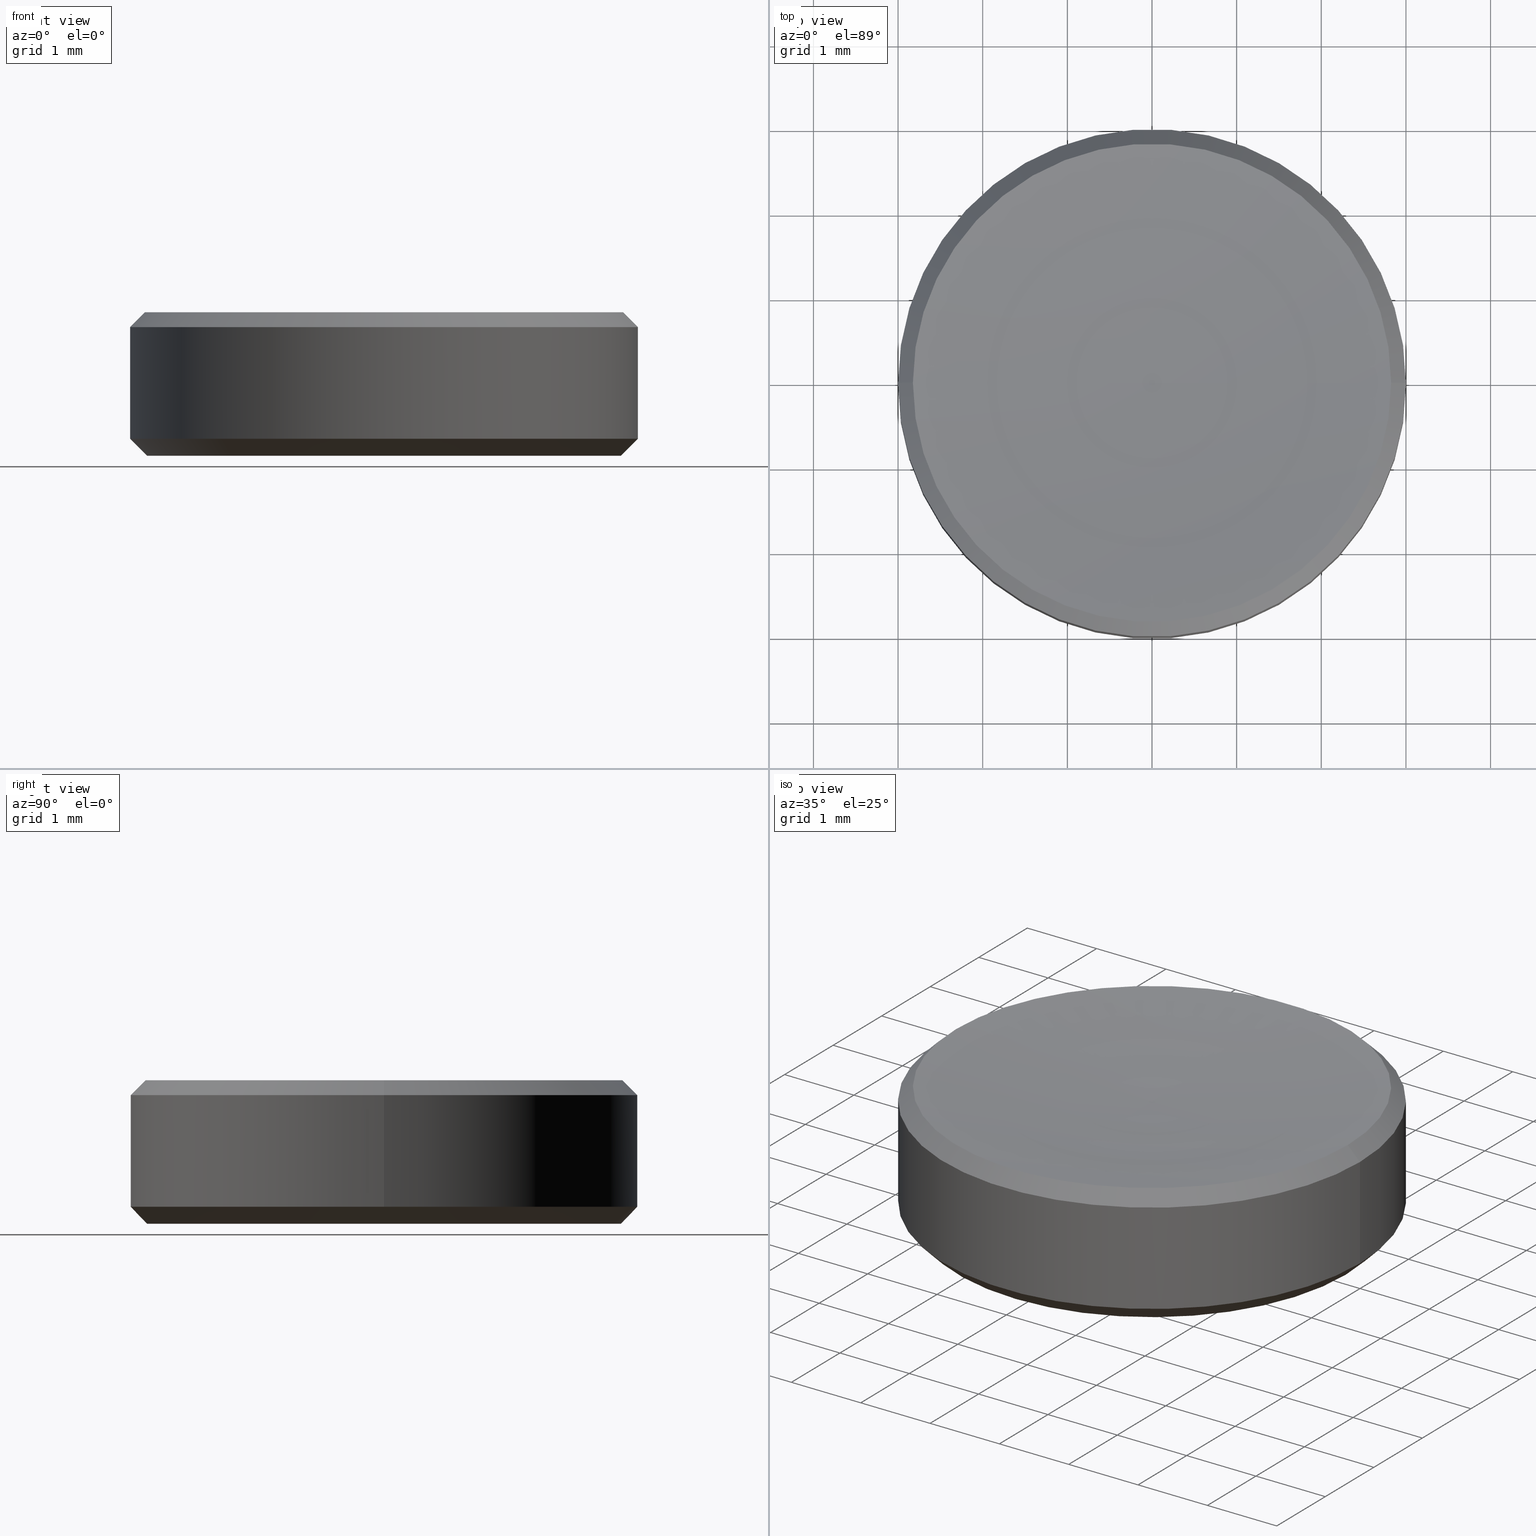
[diagram: canonical four-view strip — front | top / right | iso, engineering-drawing reading convention]
A machine part, canonical four-view strip (front | top / right | iso — engineering-drawing reading convention). The complete STEP part file that produces these views, byte-faithful:
ISO-10303-21;
HEADER;
FILE_DESCRIPTION (( 'STEP AP214' ),
    '1' );
FILE_NAME ('GL13-006A-040.STEP',
    '2022-10-25T12:40:23',
    ( '' ),
    ( '' ),
    'SwSTEP 2.0',
    'SolidWorks 2022',
    '' );
FILE_SCHEMA (( 'AUTOMOTIVE_DESIGN' ));
ENDSEC;

DATA;
#1 = VECTOR ( 'NONE', #223, 1000.000000000000000 ) ;
#2 = EDGE_CURVE ( 'NONE', #203, #196, #263, .T. ) ;
#3 = AXIS2_PLACEMENT_3D ( 'NONE', #108, #99, #93 ) ;
#4 = CIRCLE ( 'NONE', #125, 2.824988047808446812 ) ;
#5 = CARTESIAN_POINT ( 'NONE',  ( -2.824988047808448144, 0.000000000000000000, 1.695011952191550986 ) ) ;
#6 = DIRECTION ( 'NONE',  ( -0.000000000000000000, -0.000000000000000000, 1.000000000000000000 ) ) ;
#7 = FACE_OUTER_BOUND ( 'NONE', #221, .T. ) ;
#8 = COLOUR_RGB ( '',1.000000000000000000, 1.000000000000000000, 1.000000000000000000 ) ;
#9 = FACE_OUTER_BOUND ( 'NONE', #76, .T. ) ;
#10 = ORIENTED_EDGE ( 'NONE', *, *, #262, .F. ) ;
#11 = FACE_OUTER_BOUND ( 'NONE', #92, .T. ) ;
#12 = DIRECTION ( 'NONE',  ( 0.000000000000000000, 0.000000000000000000, -1.000000000000000000 ) ) ;
#13 = ORIENTED_EDGE ( 'NONE', *, *, #103, .F. ) ;
#14 = DIRECTION ( 'NONE',  ( -0.000000000000000000, -0.000000000000000000, 1.000000000000000000 ) ) ;
#15 = DIRECTION ( 'NONE',  ( -0.000000000000000000, -0.000000000000000000, 1.000000000000000000 ) ) ;
#16 = VECTOR ( 'NONE', #129, 1000.000000000000000 ) ;
#17 = VECTOR ( 'NONE', #161, 1000.000000000000000 ) ;
#18 = ORIENTED_EDGE ( 'NONE', *, *, #224, .F. ) ;
#19 = PRODUCT_CONTEXT ( 'NONE', #27, 'mechanical' ) ;
#20 = AXIS2_PLACEMENT_3D ( 'NONE', #23, #169, #66 ) ;
#21 = CIRCLE ( 'NONE', #216, 20.64999999999999858 ) ;
#22 = ADVANCED_FACE ( 'NONE', ( #7 ), #46, .T. ) ;
#23 = CARTESIAN_POINT ( 'NONE',  ( 0.000000000000000000, 0.000000000000000000, 1.519999999999993578 ) ) ;
#24 = LINE ( 'NONE', #5, #73 ) ;
#25 = DIRECTION ( 'NONE',  ( -1.000000000000000000, 0.000000000000000000, 0.000000000000000000 ) ) ;
#26 = DIRECTION ( 'NONE',  ( 0.000000000000000000, 0.000000000000000000, -1.000000000000000000 ) ) ;
#27 = APPLICATION_CONTEXT ( 'automotive_design' ) ;
#28 = LINE ( 'NONE', #241, #17 ) ;
#29 = AXIS2_PLACEMENT_3D ( 'NONE', #238, #204, #37 ) ;
#30 = ORIENTED_EDGE ( 'NONE', *, *, #103, .T. ) ;
#31 = ORIENTED_EDGE ( 'NONE', *, *, #147, .F. ) ;
#32 = CARTESIAN_POINT ( 'NONE',  ( 0.000000000000000000, 0.000000000000000000, 1.500000000000000000 ) ) ;
#33 = MECHANICAL_DESIGN_GEOMETRIC_PRESENTATION_REPRESENTATION (  '', ( #133 ), #165 ) ;
#34 = AXIS2_PLACEMENT_3D ( 'NONE', #44, #132, #172 ) ;
#35 =( GEOMETRIC_REPRESENTATION_CONTEXT ( 3 ) GLOBAL_UNCERTAINTY_ASSIGNED_CONTEXT ( ( #188 ) ) GLOBAL_UNIT_ASSIGNED_CONTEXT ( ( #181, #130, #49 ) ) REPRESENTATION_CONTEXT ( 'NONE', 'WORKASPACE' ) );
#36 = CARTESIAN_POINT ( 'NONE',  ( 0.000000000000000000, 0.000000000000000000, 1.519999999999993578 ) ) ;
#37 = DIRECTION ( 'NONE',  ( 1.000000000000000000, 0.000000000000000000, 0.000000000000000000 ) ) ;
#38 = CONICAL_SURFACE ( 'NONE', #184, 3.000000000000000000, 0.7853981633974471688 ) ;
#39 =( LENGTH_UNIT ( ) NAMED_UNIT ( * ) SI_UNIT ( .MILLI., .METRE. ) );
#40 = MANIFOLD_SOLID_BREP ( '����2', #120 ) ;
#41 = FILL_AREA_STYLE_COLOUR ( '', #67 ) ;
#42 = PRODUCT_DEFINITION ( 'δ֪', '', #163, #171 ) ;
#43 = SURFACE_STYLE_USAGE ( .BOTH. , #187 ) ;
#44 = CARTESIAN_POINT ( 'NONE',  ( 0.000000000000000000, 0.000000000000000000, 1.836970198721029934E-16 ) ) ;
#45 = CYLINDRICAL_SURFACE ( 'NONE', #124, 3.000000000000000000 ) ;
#46 = CONICAL_SURFACE ( 'NONE', #80, 3.000000000000000000, 0.7853981633974471688 ) ;
#47 = CIRCLE ( 'NONE', #102, 20.64999999999999858 ) ;
#48 = SURFACE_SIDE_STYLE ('',( #210 ) ) ;
#49 =( NAMED_UNIT ( * ) SI_UNIT ( $, .STERADIAN. ) SOLID_ANGLE_UNIT ( ) );
#50 = DIRECTION ( 'NONE',  ( 0.000000000000000000, 0.000000000000000000, -1.000000000000000000 ) ) ;
#51 = CARTESIAN_POINT ( 'NONE',  ( 2.824988047808473013, 0.000000000000000000, 1.695011952191558091 ) ) ;
#52 = ORIENTED_EDGE ( 'NONE', *, *, #231, .F. ) ;
#53 = ADVANCED_FACE ( 'NONE', ( #11 ), #162, .T. ) ;
#54 = CARTESIAN_POINT ( 'NONE',  ( -3.000000000000000000, 3.673940397442059868E-16, 1.519999999999993578 ) ) ;
#55 = ORIENTED_EDGE ( 'NONE', *, *, #126, .F. ) ;
#56 = CARTESIAN_POINT ( 'NONE',  ( -0.006266596937432424366, 0.000000000000000000, 22.14999904914677842 ) ) ;
#57 = VERTEX_POINT ( 'NONE', #193 ) ;
#58 = ORIENTED_EDGE ( 'NONE', *, *, #142, .F. ) ;
#59 = AXIS2_PLACEMENT_3D ( 'NONE', #94, #153, #60 ) ;
#60 = DIRECTION ( 'NONE',  ( 1.000000000000000000, 0.000000000000000000, 0.000000000000000000 ) ) ;
#61 = ADVANCED_FACE ( 'NONE', ( #174 ), #38, .T. ) ;
#62 = ORIENTED_EDGE ( 'NONE', *, *, #89, .F. ) ;
#63 = PRESENTATION_STYLE_ASSIGNMENT (( #43 ) ) ;
#64 = ADVANCED_FACE ( 'NONE', ( #90 ), #155, .F. ) ;
#65 = DIRECTION ( 'NONE',  ( 1.000000000000000000, 0.000000000000000000, 0.000000000000000000 ) ) ;
#66 = DIRECTION ( 'NONE',  ( -1.000000000000000000, 0.000000000000000000, 0.000000000000000000 ) ) ;
#67 = COLOUR_RGB ( '',1.000000000000000000, 1.000000000000000000, 1.000000000000000000 ) ;
#68 =( NAMED_UNIT ( * ) SI_UNIT ( $, .STERADIAN. ) SOLID_ANGLE_UNIT ( ) );
#69 = DIRECTION ( 'NONE',  ( -1.000000000000000000, 1.224646799147353207E-16, 0.000000000000000000 ) ) ;
#70 = ORIENTED_EDGE ( 'NONE', *, *, #253, .T. ) ;
#71 = CARTESIAN_POINT ( 'NONE',  ( 0.000000000000000000, 0.000000000000000000, 1.836970198721029934E-16 ) ) ;
#72 = ORIENTED_EDGE ( 'NONE', *, *, #2, .F. ) ;
#73 = VECTOR ( 'NONE', #152, 1000.000000000000000 ) ;
#74 = CARTESIAN_POINT ( 'NONE',  ( -3.000000000000000000, 3.673940397442059868E-16, 0.2000000000000020373 ) ) ;
#75 = CARTESIAN_POINT ( 'NONE',  ( 0.000000000000000000, 0.000000000000000000, 0.2000000000000020373 ) ) ;
#76 = EDGE_LOOP ( 'NONE', ( #226, #95, #194, #239 ) ) ;
#77 = PRODUCT_RELATED_PRODUCT_CATEGORY ( 'part', '', ( #144 ) ) ;
#78 = ADVANCED_FACE ( 'NONE', ( #127 ), #220, .F. ) ;
#79 = EDGE_LOOP ( 'NONE', ( #117, #30 ) ) ;
#80 = AXIS2_PLACEMENT_3D ( 'NONE', #85, #6, #168 ) ;
#81 = DIRECTION ( 'NONE',  ( 1.000000000000000000, 0.000000000000000000, 0.000000000000000000 ) ) ;
#82 = SURFACE_STYLE_FILL_AREA ( #227 ) ;
#83 = DIRECTION ( 'NONE',  ( 1.000000000000000000, 0.000000000000000000, 0.000000000000000000 ) ) ;
#84 =( NAMED_UNIT ( * ) PLANE_ANGLE_UNIT ( ) SI_UNIT ( $, .RADIAN. ) );
#85 = CARTESIAN_POINT ( 'NONE',  ( 0.000000000000000000, 0.000000000000000000, 0.2000000000000020373 ) ) ;
#86 = ORIENTED_EDGE ( 'NONE', *, *, #2, .T. ) ;
#87 = CIRCLE ( 'NONE', #59, 2.799999999999998490 ) ;
#88 = DIRECTION ( 'NONE',  ( 1.000000000000000000, 0.000000000000000000, 0.000000000000000000 ) ) ;
#89 = EDGE_CURVE ( 'NONE', #121, #245, #140, .T. ) ;
#90 = FACE_OUTER_BOUND ( 'NONE', #79, .T. ) ;
#91 = DIRECTION ( 'NONE',  ( -1.000000000000000000, 0.000000000000000000, 0.000000000000000000 ) ) ;
#92 = EDGE_LOOP ( 'NONE', ( #10, #259, #31, #154 ) ) ;
#93 = DIRECTION ( 'NONE',  ( 1.000000000000000000, 0.000000000000000000, 0.000000000000000000 ) ) ;
#94 = CARTESIAN_POINT ( 'NONE',  ( 0.000000000000000000, 0.000000000000000000, 1.836970198721029934E-16 ) ) ;
#95 = ORIENTED_EDGE ( 'NONE', *, *, #205, .T. ) ;
#96 = CARTESIAN_POINT ( 'NONE',  ( -3.000000000000000000, 3.673940397442059868E-16, 0.2000000000000020373 ) ) ;
#97 = ORIENTED_EDGE ( 'NONE', *, *, #89, .T. ) ;
#98 = CARTESIAN_POINT ( 'NONE',  ( 0.000000000000000000, 0.000000000000000000, 1.695011952191550986 ) ) ;
#99 = DIRECTION ( 'NONE',  ( -0.000000000000000000, -0.000000000000000000, 1.000000000000000000 ) ) ;
#100 = AXIS2_PLACEMENT_3D ( 'NONE', #107, #233, #83 ) ;
#101 = ADVANCED_FACE ( 'NONE', ( #9 ), #45, .T. ) ;
#102 = AXIS2_PLACEMENT_3D ( 'NONE', #212, #250, #69 ) ;
#103 = EDGE_CURVE ( 'NONE', #203, #243, #248, .T. ) ;
#104 =( NAMED_UNIT ( * ) SI_UNIT ( $, .STERADIAN. ) SOLID_ANGLE_UNIT ( ) );
#105 = SURFACE_STYLE_USAGE ( .BOTH. , #48 ) ;
#106 = EDGE_CURVE ( 'NONE', #57, #245, #24, .T. ) ;
#107 = CARTESIAN_POINT ( 'NONE',  ( 0.000000000000000000, 0.000000000000000000, 0.2000000000000020373 ) ) ;
#108 = CARTESIAN_POINT ( 'NONE',  ( 0.000000000000000000, 0.000000000000000000, 1.695011952191558091 ) ) ;
#109 = DIRECTION ( 'NONE',  ( 1.000000000000000000, 0.000000000000000000, 0.000000000000000000 ) ) ;
#110 = ORIENTED_EDGE ( 'NONE', *, *, #142, .T. ) ;
#111 = CARTESIAN_POINT ( 'NONE',  ( 0.000000000000000000, 0.000000000000000000, 0.2000000000000020373 ) ) ;
#112 = CARTESIAN_POINT ( 'NONE',  ( 3.000000000000000000, 0.000000000000000000, 1.500000000000000000 ) ) ;
#113 = ORIENTED_EDGE ( 'NONE', *, *, #231, .T. ) ;
#114 = EDGE_LOOP ( 'NONE', ( #72, #236, #199, #55 ) ) ;
#115 = TOROIDAL_SURFACE ( 'NONE', #29, -0.006266596937432424366, 20.64999999999999858 ) ;
#116 = DIRECTION ( 'NONE',  ( -0.000000000000000000, -0.000000000000000000, 1.000000000000000000 ) ) ;
#117 = ORIENTED_EDGE ( 'NONE', *, *, #235, .T. ) ;
#118 = FACE_OUTER_BOUND ( 'NONE', #219, .T. ) ;
#119 = DIRECTION ( 'NONE',  ( 0.000000000000000000, 0.000000000000000000, 1.000000000000000000 ) ) ;
#120 = CLOSED_SHELL ( 'NONE', ( #53, #22, #101, #78, #254, #175, #64, #61, #206 ) ) ;
#121 = VERTEX_POINT ( 'NONE', #150 ) ;
#122 = ORIENTED_EDGE ( 'NONE', *, *, #106, .T. ) ;
#123 =( NAMED_UNIT ( * ) PLANE_ANGLE_UNIT ( ) SI_UNIT ( $, .RADIAN. ) );
#124 = AXIS2_PLACEMENT_3D ( 'NONE', #230, #128, #189 ) ;
#125 = AXIS2_PLACEMENT_3D ( 'NONE', #234, #15, #178 ) ;
#126 = EDGE_CURVE ( 'NONE', #196, #173, #215, .T. ) ;
#127 = FACE_OUTER_BOUND ( 'NONE', #214, .T. ) ;
#128 = DIRECTION ( 'NONE',  ( -0.000000000000000000, -0.000000000000000000, 1.000000000000000000 ) ) ;
#129 = DIRECTION ( 'NONE',  ( 0.7071067811865361374, 8.659560562354792342E-17, -0.7071067811865588970 ) ) ;
#130 =( NAMED_UNIT ( * ) PLANE_ANGLE_UNIT ( ) SI_UNIT ( $, .RADIAN. ) );
#131 = EDGE_LOOP ( 'NONE', ( #134, #137, #70, #97 ) ) ;
#132 = DIRECTION ( 'NONE',  ( 0.000000000000000000, -0.000000000000000000, 1.000000000000000000 ) ) ;
#133 = STYLED_ITEM ( 'NONE', ( #258 ), #40 ) ;
#134 = ORIENTED_EDGE ( 'NONE', *, *, #205, .F. ) ;
#135 = DIRECTION ( 'NONE',  ( 0.000000000000000000, -1.000000000000000000, 0.000000000000000000 ) ) ;
#136 = EDGE_CURVE ( 'NONE', #225, #121, #192, .T. ) ;
#137 = ORIENTED_EDGE ( 'NONE', *, *, #126, .T. ) ;
#138 = FACE_OUTER_BOUND ( 'NONE', #131, .T. ) ;
#139 = ORIENTED_EDGE ( 'NONE', *, *, #262, .T. ) ;
#140 = CIRCLE ( 'NONE', #20, 3.000000000000000000 ) ;
#141 =( GEOMETRIC_REPRESENTATION_CONTEXT ( 3 ) GLOBAL_UNCERTAINTY_ASSIGNED_CONTEXT ( ( #256 ) ) GLOBAL_UNIT_ASSIGNED_CONTEXT ( ( #39, #123, #104 ) ) REPRESENTATION_CONTEXT ( 'NONE', 'WORKASPACE' ) );
#142 = EDGE_CURVE ( 'NONE', #57, #225, #242, .T. ) ;
#143 = CARTESIAN_POINT ( 'NONE',  ( 2.799999999999998490, 0.000000000000000000, 1.836970198721029934E-16 ) ) ;
#144 = PRODUCT ( 'GL13-006A-040', 'GL13-006A-040', '', ( #19 ) ) ;
#145 = AXIS2_PLACEMENT_3D ( 'NONE', #75, #240, #217 ) ;
#146 = SHAPE_DEFINITION_REPRESENTATION ( #208, #229 ) ;
#147 = EDGE_CURVE ( 'NONE', #245, #121, #158, .T. ) ;
#148 = APPLICATION_PROTOCOL_DEFINITION ( 'draft international standard', 'automotive_design', 1998, #160 ) ;
#149 = CARTESIAN_POINT ( 'NONE',  ( 2.824988047808448144, 3.459612570378145558E-16, 1.695011952191550986 ) ) ;
#150 = CARTESIAN_POINT ( 'NONE',  ( 3.000000000000000000, 0.000000000000000000, 1.519999999999993578 ) ) ;
#151 = AXIS2_PLACEMENT_3D ( 'NONE', #260, #26, #25 ) ;
#152 = DIRECTION ( 'NONE',  ( -0.7071067811865361374, 0.000000000000000000, -0.7071067811865588970 ) ) ;
#153 = DIRECTION ( 'NONE',  ( 0.000000000000000000, 0.000000000000000000, -1.000000000000000000 ) ) ;
#154 = ORIENTED_EDGE ( 'NONE', *, *, #106, .F. ) ;
#155 = PLANE ( 'NONE',  #34 ) ;
#156 = DIRECTION ( 'NONE',  ( 0.000000000000000000, 0.000000000000000000, -1.000000000000000000 ) ) ;
#157 = VERTEX_POINT ( 'NONE', #32 ) ;
#158 = CIRCLE ( 'NONE', #190, 3.000000000000000000 ) ;
#159 = LINE ( 'NONE', #247, #179 ) ;
#160 = APPLICATION_CONTEXT ( 'automotive_design' ) ;
#161 = DIRECTION ( 'NONE',  ( 0.7071067811865467956, 0.000000000000000000, 0.7071067811865483499 ) ) ;
#162 = CONICAL_SURFACE ( 'NONE', #151, 2.824988047808448144, 0.7853981633974321808 ) ;
#163 = PRODUCT_DEFINITION_FORMATION_WITH_SPECIFIED_SOURCE ( '�κ�', '', #144, .NOT_KNOWN. ) ;
#164 = VECTOR ( 'NONE', #197, 1000.000000000000000 ) ;
#165 =( GEOMETRIC_REPRESENTATION_CONTEXT ( 3 ) GLOBAL_UNCERTAINTY_ASSIGNED_CONTEXT ( ( #213 ) ) GLOBAL_UNIT_ASSIGNED_CONTEXT ( ( #211, #84, #68 ) ) REPRESENTATION_CONTEXT ( 'NONE', 'WORKASPACE' ) );
#166 = EDGE_LOOP ( 'NONE', ( #252, #58, #122, #62 ) ) ;
#167 = CARTESIAN_POINT ( 'NONE',  ( 0.000000000000000000, 0.000000000000000000, 22.14999904914677842 ) ) ;
#168 = DIRECTION ( 'NONE',  ( 1.000000000000000000, 0.000000000000000000, 0.000000000000000000 ) ) ;
#169 = DIRECTION ( 'NONE',  ( 0.000000000000000000, 0.000000000000000000, -1.000000000000000000 ) ) ;
#170 = MECHANICAL_DESIGN_GEOMETRIC_PRESENTATION_REPRESENTATION (  '', ( #222 ), #141 ) ;
#171 = PRODUCT_DEFINITION_CONTEXT ( 'detailed design', #160, 'design' ) ;
#172 = DIRECTION ( 'NONE',  ( 1.000000000000000000, 0.000000000000000000, 0.000000000000000000 ) ) ;
#173 = VERTEX_POINT ( 'NONE', #182 ) ;
#174 = FACE_OUTER_BOUND ( 'NONE', #114, .T. ) ;
#175 = ADVANCED_FACE ( 'NONE', ( #138 ), #265, .T. ) ;
#176 = ORIENTED_EDGE ( 'NONE', *, *, #177, .T. ) ;
#177 = EDGE_CURVE ( 'NONE', #157, #225, #21, .T. ) ;
#178 = DIRECTION ( 'NONE',  ( 1.000000000000000000, 0.000000000000000000, 0.000000000000000000 ) ) ;
#179 = VECTOR ( 'NONE', #116, 1000.000000000000000 ) ;
#180 = CARTESIAN_POINT ( 'NONE',  ( -2.799999999999998490, 3.551475717527323339E-16, 1.836970198721029934E-16 ) ) ;
#181 =( LENGTH_UNIT ( ) NAMED_UNIT ( * ) SI_UNIT ( .MILLI., .METRE. ) );
#182 = CARTESIAN_POINT ( 'NONE',  ( 3.000000000000000000, 0.000000000000000000, 0.2000000000000020373 ) ) ;
#183 = EDGE_CURVE ( 'NONE', #173, #196, #249, .T. ) ;
#184 = AXIS2_PLACEMENT_3D ( 'NONE', #111, #237, #109 ) ;
#185 = CONICAL_SURFACE ( 'NONE', #191, 2.824988047808448144, 0.7853981633974321808 ) ;
#186 = APPLICATION_PROTOCOL_DEFINITION ( 'draft international standard', 'automotive_design', 1998, #27 ) ;
#187 = SURFACE_SIDE_STYLE ('',( #82 ) ) ;
#188 = UNCERTAINTY_MEASURE_WITH_UNIT (LENGTH_MEASURE( 1.000000000000000082E-05 ), #181, 'distance_accuracy_value', 'NONE');
#189 = DIRECTION ( 'NONE',  ( 1.000000000000000000, 0.000000000000000000, 0.000000000000000000 ) ) ;
#190 = AXIS2_PLACEMENT_3D ( 'NONE', #36, #12, #244 ) ;
#191 = AXIS2_PLACEMENT_3D ( 'NONE', #98, #156, #91 ) ;
#192 = LINE ( 'NONE', #149, #16 ) ;
#193 = CARTESIAN_POINT ( 'NONE',  ( -2.824988047808473013, 3.459612570378175633E-16, 1.695011952191558091 ) ) ;
#194 = ORIENTED_EDGE ( 'NONE', *, *, #147, .T. ) ;
#195 = AXIS2_PLACEMENT_3D ( 'NONE', #71, #50, #65 ) ;
#196 = VERTEX_POINT ( 'NONE', #96 ) ;
#197 = DIRECTION ( 'NONE',  ( -0.7071067811865467956, 8.659560562354925463E-17, 0.7071067811865483499 ) ) ;
#198 = PRESENTATION_LAYER_ASSIGNMENT (  '', '', ( #133 ) ) ;
#199 = ORIENTED_EDGE ( 'NONE', *, *, #224, .T. ) ;
#200 = PRESENTATION_LAYER_ASSIGNMENT (  '', '', ( #222 ) ) ;
#201 = CARTESIAN_POINT ( 'NONE',  ( 0.000000000000000000, 0.000000000000000000, 1.500000000000000000 ) ) ;
#202 = FACE_OUTER_BOUND ( 'NONE', #166, .T. ) ;
#203 = VERTEX_POINT ( 'NONE', #180 ) ;
#204 = DIRECTION ( 'NONE',  ( -0.000000000000000000, -0.000000000000000000, 1.000000000000000000 ) ) ;
#205 = EDGE_CURVE ( 'NONE', #196, #245, #159, .T. ) ;
#206 = ADVANCED_FACE ( 'NONE', ( #202 ), #185, .T. ) ;
#207 = AXIS2_PLACEMENT_3D ( 'NONE', #251, #119, #81 ) ;
#208 = PRODUCT_DEFINITION_SHAPE ( 'NONE', 'NONE',  #42 ) ;
#209 = FILL_AREA_STYLE ('',( #232 ) ) ;
#210 = SURFACE_STYLE_FILL_AREA ( #209 ) ;
#211 =( LENGTH_UNIT ( ) NAMED_UNIT ( * ) SI_UNIT ( .MILLI., .METRE. ) );
#212 = CARTESIAN_POINT ( 'NONE',  ( 0.006266596937432424366, -7.674367880973224398E-19, 22.14999904914677842 ) ) ;
#213 = UNCERTAINTY_MEASURE_WITH_UNIT (LENGTH_MEASURE( 1.000000000000000082E-05 ), #211, 'distance_accuracy_value', 'NONE');
#214 = EDGE_LOOP ( 'NONE', ( #266, #113, #110 ) ) ;
#215 = CIRCLE ( 'NONE', #100, 3.000000000000000000 ) ;
#216 = AXIS2_PLACEMENT_3D ( 'NONE', #56, #135, #218 ) ;
#217 = DIRECTION ( 'NONE',  ( 1.000000000000000000, 0.000000000000000000, 0.000000000000000000 ) ) ;
#218 = DIRECTION ( 'NONE',  ( 0.000000000000000000, 0.000000000000000000, -1.000000000000000000 ) ) ;
#219 = EDGE_LOOP ( 'NONE', ( #52, #176, #139 ) ) ;
#221 = EDGE_LOOP ( 'NONE', ( #13, #86, #261, #18 ) ) ;
#220 = TOROIDAL_SURFACE ( 'NONE', #257, -0.006266596937432424366, 20.64999999999999858 ) ;
#222 = STYLED_ITEM ( 'NONE', ( #63 ), #229 ) ;
#223 = DIRECTION ( 'NONE',  ( -0.000000000000000000, -0.000000000000000000, 1.000000000000000000 ) ) ;
#224 = EDGE_CURVE ( 'NONE', #243, #173, #28, .T. ) ;
#225 = VERTEX_POINT ( 'NONE', #51 ) ;
#226 = ORIENTED_EDGE ( 'NONE', *, *, #183, .T. ) ;
#227 = FILL_AREA_STYLE ('',( #41 ) ) ;
#228 = AXIS2_PLACEMENT_3D ( 'NONE', #201, #14, #246 ) ;
#229 = ADVANCED_BREP_SHAPE_REPRESENTATION ( 'GL13-006A-040', ( #40, #207 ), #35 ) ;
#230 = CARTESIAN_POINT ( 'NONE',  ( 0.000000000000000000, 0.000000000000000000, 1.500000000000000000 ) ) ;
#231 = EDGE_CURVE ( 'NONE', #157, #57, #47, .T. ) ;
#232 = FILL_AREA_STYLE_COLOUR ( '', #8 ) ;
#233 = DIRECTION ( 'NONE',  ( -0.000000000000000000, -0.000000000000000000, 1.000000000000000000 ) ) ;
#234 = CARTESIAN_POINT ( 'NONE',  ( 0.000000000000000000, 0.000000000000000000, 1.695011952191558091 ) ) ;
#235 = EDGE_CURVE ( 'NONE', #243, #203, #87, .T. ) ;
#236 = ORIENTED_EDGE ( 'NONE', *, *, #235, .F. ) ;
#237 = DIRECTION ( 'NONE',  ( -0.000000000000000000, -0.000000000000000000, 1.000000000000000000 ) ) ;
#238 = CARTESIAN_POINT ( 'NONE',  ( 0.000000000000000000, 0.000000000000000000, 22.14999904914677842 ) ) ;
#239 = ORIENTED_EDGE ( 'NONE', *, *, #253, .F. ) ;
#240 = DIRECTION ( 'NONE',  ( -0.000000000000000000, -0.000000000000000000, 1.000000000000000000 ) ) ;
#241 = CARTESIAN_POINT ( 'NONE',  ( 3.000000000000000000, 0.000000000000000000, 0.2000000000000020373 ) ) ;
#242 = CIRCLE ( 'NONE', #3, 2.824988047808446812 ) ;
#243 = VERTEX_POINT ( 'NONE', #143 ) ;
#244 = DIRECTION ( 'NONE',  ( -1.000000000000000000, 0.000000000000000000, 0.000000000000000000 ) ) ;
#245 = VERTEX_POINT ( 'NONE', #54 ) ;
#246 = DIRECTION ( 'NONE',  ( 1.000000000000000000, 0.000000000000000000, 0.000000000000000000 ) ) ;
#247 = CARTESIAN_POINT ( 'NONE',  ( -3.000000000000000000, 3.673940397442059868E-16, 1.500000000000000000 ) ) ;
#248 = CIRCLE ( 'NONE', #195, 2.799999999999998490 ) ;
#249 = CIRCLE ( 'NONE', #145, 3.000000000000000000 ) ;
#250 = DIRECTION ( 'NONE',  ( 1.224646799147353207E-16, 1.000000000000000000, 0.000000000000000000 ) ) ;
#251 = CARTESIAN_POINT ( 'NONE',  ( 0.000000000000000000, 0.000000000000000000, 0.000000000000000000 ) ) ;
#252 = ORIENTED_EDGE ( 'NONE', *, *, #136, .F. ) ;
#253 = EDGE_CURVE ( 'NONE', #173, #121, #264, .T. ) ;
#254 = ADVANCED_FACE ( 'NONE', ( #118 ), #115, .F. ) ;
#255 = DIRECTION ( 'NONE',  ( -0.000000000000000000, -0.000000000000000000, 1.000000000000000000 ) ) ;
#256 = UNCERTAINTY_MEASURE_WITH_UNIT (LENGTH_MEASURE( 1.000000000000000082E-05 ), #39, 'distance_accuracy_value', 'NONE');
#257 = AXIS2_PLACEMENT_3D ( 'NONE', #167, #255, #88 ) ;
#258 = PRESENTATION_STYLE_ASSIGNMENT (( #105 ) ) ;
#259 = ORIENTED_EDGE ( 'NONE', *, *, #136, .T. ) ;
#260 = CARTESIAN_POINT ( 'NONE',  ( 0.000000000000000000, 0.000000000000000000, 1.695011952191550986 ) ) ;
#261 = ORIENTED_EDGE ( 'NONE', *, *, #183, .F. ) ;
#262 = EDGE_CURVE ( 'NONE', #225, #57, #4, .T. ) ;
#263 = LINE ( 'NONE', #74, #164 ) ;
#264 = LINE ( 'NONE', #112, #1 ) ;
#265 = CYLINDRICAL_SURFACE ( 'NONE', #228, 3.000000000000000000 ) ;
#266 = ORIENTED_EDGE ( 'NONE', *, *, #177, .F. ) ;
ENDSEC;
END-ISO-10303-21;
